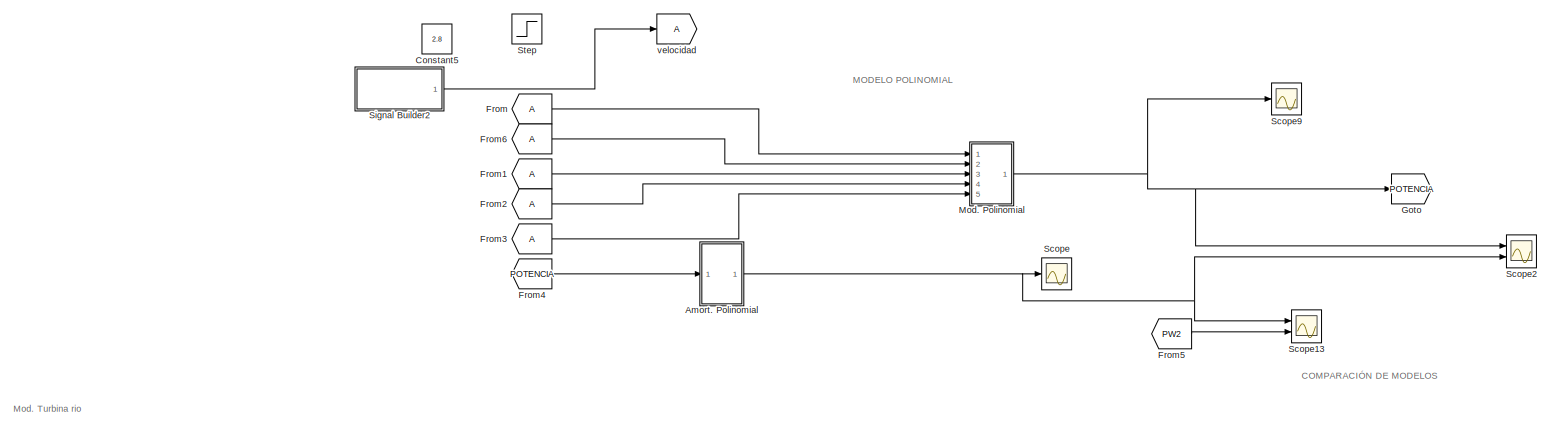
[diagram: root canvas - part 1/4, full width, top band]
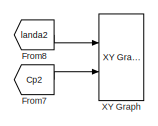
[diagram: root canvas - part 2/4, top right region]
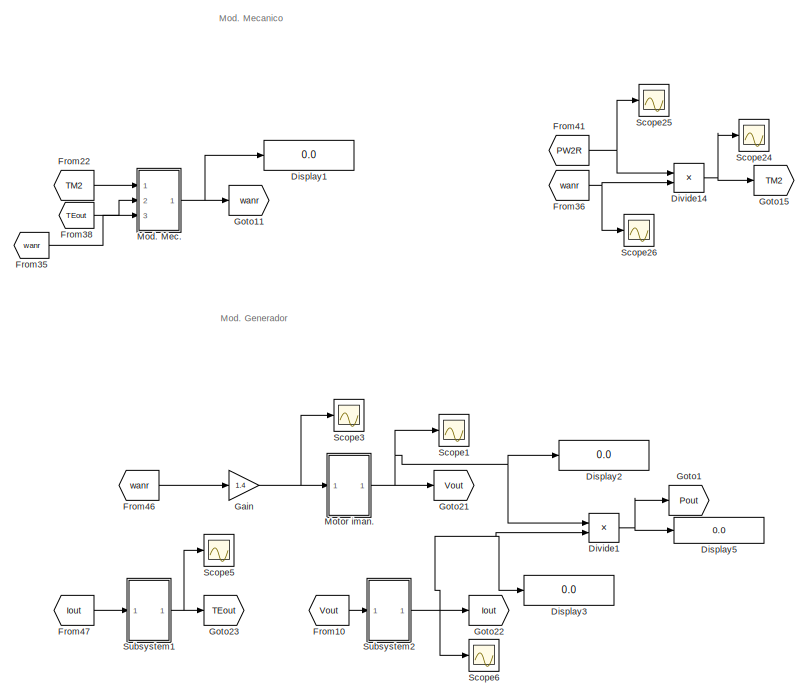
[diagram: root canvas - part 3/4, middle right region]
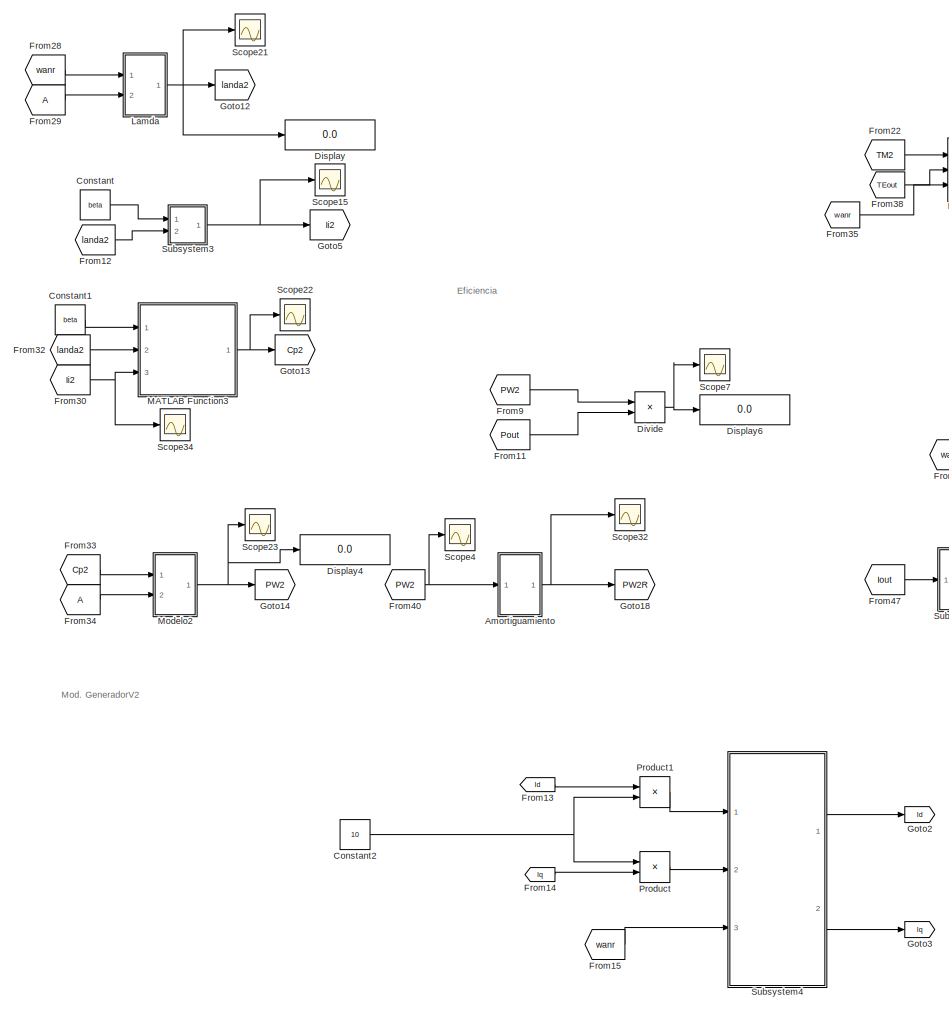
[diagram: root canvas - part 4/4, middle left region]
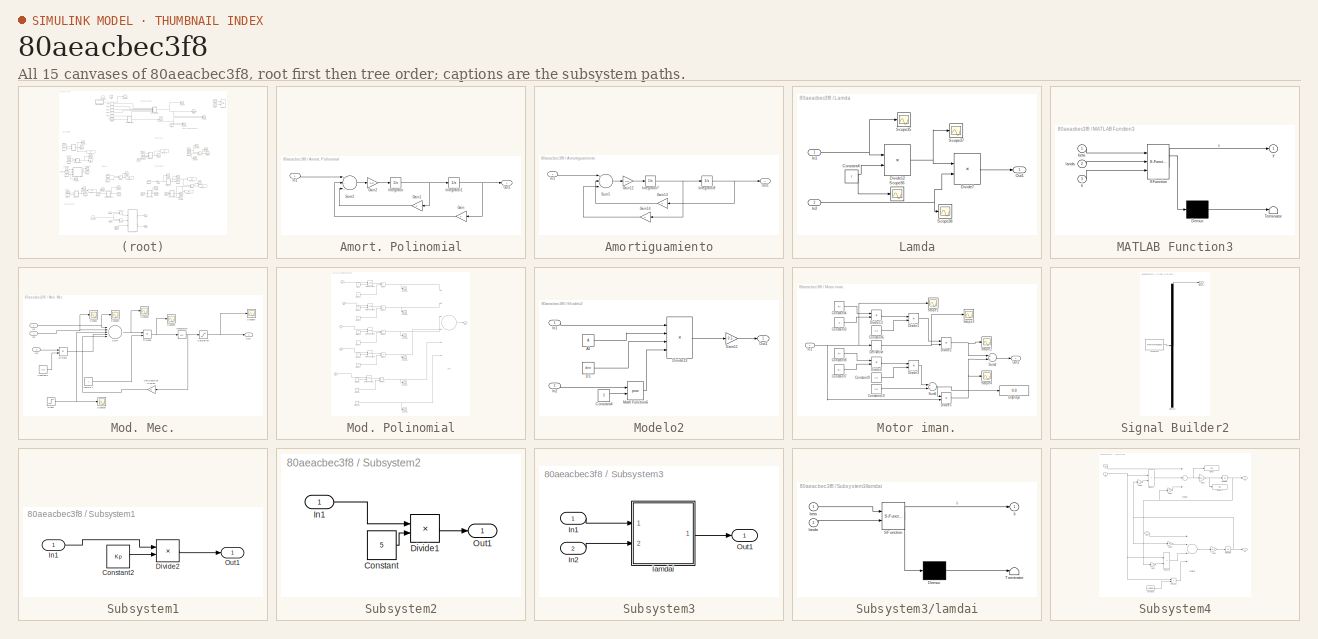
[diagram: thumbnail index - all 15 canvases of the model, root first then tree order]
MODEL slx_80aeacbec3f8
KIND model
CONFIG AbsTol = auto
CONFIG EnableMultiTasking = off
CONFIG FixedStep = 50e-3
CONFIG MaxStep = auto
CONFIG MinStep = auto
CONFIG RelTol = 1e-3
CONFIG SampleTimeConstraint = Unconstrained
CONFIG Solver = FixedStepAuto
CONFIG SolverName = FixedStepAuto
CONFIG StartTime = 0.0
CONFIG StopTime = 500
BLOCK [SubSystem] Amort. Polinomial
  Ports = [1, 1]
  RequestExecContextInheritance = off
  Variant = off
BLOCK [Gain] Amort. Polinomial/Gain
  Gain = k
  OutDataTypeStr = Inherit: Inherit via internal rule
  ParamDataTypeStr = Inherit: Inherit via internal rule
  SaturateOnIntegerOverflow = off
BLOCK [Gain] Amort. Polinomial/Gain1
  Gain = z
  OutDataTypeStr = Inherit: Inherit via internal rule
  ParamDataTypeStr = Inherit: Inherit via internal rule
  SaturateOnIntegerOverflow = off
BLOCK [Gain] Amort. Polinomial/Gain2
  Gain = 1/m
  OutDataTypeStr = Inherit: Inherit via internal rule
  ParamDataTypeStr = Inherit: Inherit via internal rule
  SaturateOnIntegerOverflow = off
BLOCK [Inport] Amort. Polinomial/In1
  IconDisplay = Port number
BLOCK [Integrator] Amort. Polinomial/Integrator
  Ports = [1, 1]
BLOCK [Integrator] Amort. Polinomial/Integrator1
  Ports = [1, 1]
BLOCK [Outport] Amort. Polinomial/Out1
  IconDisplay = Port number
BLOCK [Sum] Amort. Polinomial/Sum2
  InputSameDT = off
  Inputs = +--
  OutDataTypeStr = Inherit: Inherit via internal rule
  Ports = [3, 1]
  SaturateOnIntegerOverflow = off
BLOCK [SubSystem] Amortiguamiento
  Ports = [1, 1]
  RequestExecContextInheritance = off
  Variant = off
BLOCK [Gain] Amortiguamiento/Gain12
  Gain = 1/m
  OutDataTypeStr = Inherit: Inherit via internal rule
  ParamDataTypeStr = Inherit: Inherit via internal rule
  SaturateOnIntegerOverflow = off
BLOCK [Gain] Amortiguamiento/Gain13
  Gain = k
  OutDataTypeStr = Inherit: Inherit via internal rule
  ParamDataTypeStr = Inherit: Inherit via internal rule
  SaturateOnIntegerOverflow = off
BLOCK [Gain] Amortiguamiento/Gain14
  Gain = z
  OutDataTypeStr = Inherit: Inherit via internal rule
  ParamDataTypeStr = Inherit: Inherit via internal rule
  SaturateOnIntegerOverflow = off
BLOCK [Inport] Amortiguamiento/In1
  IconDisplay = Port number
BLOCK [Integrator] Amortiguamiento/Integrator7
  Ports = [1, 1]
BLOCK [Integrator] Amortiguamiento/Integrator8
  Ports = [1, 1]
BLOCK [Outport] Amortiguamiento/Out1
  IconDisplay = Port number
BLOCK [Sum] Amortiguamiento/Sum5
  InputSameDT = off
  Inputs = +--
  OutDataTypeStr = Inherit: Inherit via internal rule
  Ports = [3, 1]
  SaturateOnIntegerOverflow = off
BLOCK [Constant] Constant
  Value = beta
BLOCK [Constant] Constant1
  Value = beta
BLOCK [Constant] Constant2
  Value = 10
BLOCK [Constant] Constant5
  Value = 2.8
BLOCK [Display] Display
  Decimation = 1
  Ports = [1]
BLOCK [Display] Display1
  Decimation = 1
  Ports = [1]
BLOCK [Display] Display2
  Decimation = 1
  Ports = [1]
BLOCK [Display] Display3
  Decimation = 1
  Ports = [1]
BLOCK [Display] Display4
  Decimation = 1
  Ports = [1]
BLOCK [Display] Display5
  Decimation = 1
  Ports = [1]
BLOCK [Display] Display6
  Decimation = 1
  Ports = [1]
BLOCK [Product] Divide
  InputSameDT = off
  Inputs = /*
  OutDataTypeStr = Inherit: Inherit via internal rule
  Ports = [2, 1]
  RndMeth = Floor
  SaturateOnIntegerOverflow = off
BLOCK [Product] Divide1
  InputSameDT = off
  Inputs = **
  OutDataTypeStr = Inherit: Inherit via internal rule
  Ports = [2, 1]
  RndMeth = Floor
  SaturateOnIntegerOverflow = off
BLOCK [Product] Divide14
  InputSameDT = off
  Inputs = */
  OutDataTypeStr = Inherit: Inherit via internal rule
  Ports = [2, 1]
  RndMeth = Floor
  SaturateOnIntegerOverflow = off
BLOCK [From] From
BLOCK [From] From1
BLOCK [From] From10
  GotoTag = Vout
BLOCK [From] From11
  GotoTag = Pout
BLOCK [From] From12
  GotoTag = landa2
BLOCK [From] From13
  GotoTag = Id
  TagVisibility = global
BLOCK [From] From14
  GotoTag = Iq
  TagVisibility = global
BLOCK [From] From15
  GotoTag = wanr
BLOCK [From] From2
BLOCK [From] From22
  GotoTag = TM2
BLOCK [From] From28
  GotoTag = wanr
BLOCK [From] From29
BLOCK [From] From3
BLOCK [From] From30
  GotoTag = Ii2
BLOCK [From] From32
  GotoTag = landa2
BLOCK [From] From33
  GotoTag = Cp2
BLOCK [From] From34
BLOCK [From] From35
  GotoTag = wanr
BLOCK [From] From36
  GotoTag = wanr
BLOCK [From] From38
  GotoTag = TEout
BLOCK [From] From4
  GotoTag = POTENCIA
BLOCK [From] From40
  GotoTag = PW2
BLOCK [From] From41
  GotoTag = PW2R
BLOCK [From] From46
  GotoTag = wanr
BLOCK [From] From47
  GotoTag = Iout
BLOCK [From] From5
  GotoTag = PW2
BLOCK [From] From6
BLOCK [From] From7
  GotoTag = Cp2
BLOCK [From] From8
  GotoTag = landa2
BLOCK [From] From9
  GotoTag = PW2
BLOCK [Gain] Gain
  Gain = 1.4
  OutDataTypeStr = Inherit: Inherit via internal rule
  ParamDataTypeStr = Inherit: Inherit via internal rule
  SaturateOnIntegerOverflow = off
BLOCK [Goto] Goto
  GotoTag = POTENCIA
BLOCK [Goto] Goto1
  GotoTag = Pout
BLOCK [Goto] Goto11
  GotoTag = wanr
BLOCK [Goto] Goto12
  GotoTag = landa2
BLOCK [Goto] Goto13
  GotoTag = Cp2
BLOCK [Goto] Goto14
  GotoTag = PW2
BLOCK [Goto] Goto15
  GotoTag = TM2
BLOCK [Goto] Goto18
  GotoTag = PW2R
BLOCK [Goto] Goto2
  GotoTag = Id
  TagVisibility = global
BLOCK [Goto] Goto21
  GotoTag = Vout
BLOCK [Goto] Goto22
  GotoTag = Iout
BLOCK [Goto] Goto23
  GotoTag = TEout
BLOCK [Goto] Goto3
  GotoTag = Iq
  TagVisibility = global
BLOCK [Goto] Goto5
  GotoTag = Ii2
BLOCK [SubSystem] Lamda
  Ports = [2, 1]
  RequestExecContextInheritance = off
  Variant = off
BLOCK [Constant] Lamda/Constant4
  Value = r
BLOCK [Product] Lamda/Divide12
  InputSameDT = off
  Inputs = **
  OutDataTypeStr = Inherit: Inherit via internal rule
  Ports = [2, 1]
  RndMeth = Floor
  SaturateOnIntegerOverflow = off
BLOCK [Product] Lamda/Divide7
  InputSameDT = off
  Inputs = */
  OutDataTypeStr = Inherit: Inherit via internal rule
  Ports = [2, 1]
  RndMeth = Floor
  SaturateOnIntegerOverflow = off
BLOCK [Inport] Lamda/In1
  IconDisplay = Port number
BLOCK [Inport] Lamda/In2
  IconDisplay = Port number
  Port = 2
BLOCK [Outport] Lamda/Out1
  IconDisplay = Port number
BLOCK [Scope] Lamda/Scope35
  NumInputPorts = 1
  Ports = [1]
  ScopeSpecificationString = Simulink.scopes.TimeScopeBlockCfg('CurrentConfiguration', extmgr.ConfigurationSet(extmgr.Configuration('Core','General UI',true),extmgr.Configuration('Core','Source UI',true),extmgr.Configuration('Sources','WiredSimulink',true,'DataLoggingVariableName','ScopeData3'),extmgr.Configuration('Visuals','Time Domain',true,'SerializedDisplays',{struct('MinYLimReal','5.6875','MaxYLimReal','48.8125','YLabel...<+1643ch>
BLOCK [Scope] Lamda/Scope36
  NumInputPorts = 1
  Ports = [1]
  ScopeSpecificationString = Simulink.scopes.TimeScopeBlockCfg('CurrentConfiguration', extmgr.ConfigurationSet(extmgr.Configuration('Core','General UI',true),extmgr.Configuration('Core','Source UI',true),extmgr.Configuration('Sources','WiredSimulink',true,'DataLoggingVariableName','ScopeData4'),extmgr.Configuration('Visuals','Time Domain',true,'SerializedDisplays',{struct('MinYLimReal','0.4','MaxYLimReal','0.6','YLabelReal','...<+1363ch>
BLOCK [Scope] Lamda/Scope37
  NumInputPorts = 1
  Ports = [1]
  ScopeSpecificationString = Simulink.scopes.TimeScopeBlockCfg('CurrentConfiguration', extmgr.ConfigurationSet(extmgr.Configuration('Core','General UI',true),extmgr.Configuration('Core','Source UI',true),extmgr.Configuration('Sources','WiredSimulink',true,'DataLoggingVariableName','ScopeData5'),extmgr.Configuration('Visuals','Time Domain',true,'SerializedDisplays',{struct('MinYLimReal','2.60111','MaxYLimReal','26.59001','YLab...<+1394ch>
BLOCK [Scope] Lamda/Scope38
  NumInputPorts = 1
  Ports = [1]
  ScopeSpecificationString = Simulink.scopes.TimeScopeBlockCfg('CurrentConfiguration', extmgr.ConfigurationSet(extmgr.Configuration('Core','General UI',true),extmgr.Configuration('Core','Source UI',true),extmgr.Configuration('Sources','WiredSimulink',true,'DataLoggingVariableName','ScopeData6'),extmgr.Configuration('Visuals','Time Domain',true,'SerializedDisplays',{struct('MinYLimReal','1.9','MaxYLimReal','2.9','YLabelReal','...<+1328ch>
BLOCK [SubSystem] MATLAB Function3
  ErrorFcn = Stateflow.Translate.translate
  PermitHierarchicalResolution = ExplicitOnly
  Ports = [3, 1]
  RequestExecContextInheritance = off
  SFBlockType = MATLAB Function
  TreatAsAtomicUnit = on
  Variant = off
BLOCK [Demux] MATLAB Function3/ Demux 
  Outputs = 1
  Ports = [1, 1]
BLOCK [S-Function] MATLAB Function3/ SFunction 
  EnableBusSupport = on
  FunctionName = sf_sfun
  PortCounts = [3 2]
  Ports = [3, 2]
  SFcnIsStateOwnerBlock = off
  SFunctionDeploymentMode = off
  Tag = Stateflow S-Function MODELODETURBINADERIO2017aV2 2
BLOCK [Terminator] MATLAB Function3/ Terminator 
BLOCK [Inport] MATLAB Function3/Ii
  IconDisplay = Port number
  Port = 3
BLOCK [Inport] MATLAB Function3/beta
  IconDisplay = Port number
BLOCK [Inport] MATLAB Function3/landa
  IconDisplay = Port number
  Port = 2
BLOCK [Outport] MATLAB Function3/y
  IconDisplay = Port number
BLOCK [SubSystem] Mod. Mec.
  Ports = [3, 1]
  RequestExecContextInheritance = off
  Variant = off
BLOCK [Constant] Mod. Mec./Constant3
  Value = T_d
BLOCK [Product] Mod. Mec./Divide1
  InputSameDT = off
  Inputs = **
  OutDataTypeStr = Inherit: Inherit via internal rule
  Ports = [2, 1]
  RndMeth = Floor
  SaturateOnIntegerOverflow = off
BLOCK [Product] Mod. Mec./Divide9
  InputSameDT = off
  Inputs = */
  OutDataTypeStr = Inherit: Inherit via internal rule
  Ports = [2, 1]
  RndMeth = Floor
  SaturateOnIntegerOverflow = off
BLOCK [Inport] Mod. Mec./In1
  IconDisplay = Port number
BLOCK [Inport] Mod. Mec./In2
  IconDisplay = Port number
  Port = 2
BLOCK [Inport] Mod. Mec./In3
  IconDisplay = Port number
  Port = 3
BLOCK [Integrator] Mod. Mec./Integrator6
  InitialCondition = 10
  Ports = [1, 1]
BLOCK [Gain] Mod. Mec./Oeficiente de friccion
  Gain = B
  OutDataTypeStr = Inherit: Inherit via internal rule
  ParamDataTypeStr = Inherit: Inherit via internal rule
  SaturateOnIntegerOverflow = off
BLOCK [Outport] Mod. Mec./Out1
  IconDisplay = Port number
BLOCK [Saturate] Mod. Mec./Saturation
  InputPortMap = u0
  LowerLimit = 0
  Ports = [1, 1]
  UpperLimit = 44.5
BLOCK [Scope] Mod. Mec./Scope1
  NumInputPorts = 1
  Ports = [1]
  ScopeSpecificationString = Simulink.scopes.TimeScopeBlockCfg('CurrentConfiguration', extmgr.ConfigurationSet(extmgr.Configuration('Core','General UI',true),extmgr.Configuration('Core','Source UI',true),extmgr.Configuration('Sources','WiredSimulink',true,'DataLoggingVariableName','ScopeData3'),extmgr.Configuration('Visuals','Time Domain',true,'SerializedDisplays',{struct('MinYLimReal','0.88026','MaxYLimReal','9.22205','YLabe...<+1414ch>
BLOCK [Scope] Mod. Mec./Scope27
  NumInputPorts = 1
  Ports = [1]
  ScopeSpecificationString = Simulink.scopes.TimeScopeBlockCfg('CurrentConfiguration', extmgr.ConfigurationSet(extmgr.Configuration('Core','General UI',true),extmgr.Configuration('Core','Source UI',true),extmgr.Configuration('Sources','WiredSimulink',true,'DataLoggingVariableName','ScopeData11'),extmgr.Configuration('Visuals','Time Domain',true,'SerializedDisplays',{struct('MinYLimReal','2.3554','MaxYLimReal','78.80139','YLab...<+1439ch>
BLOCK [Scope] Mod. Mec./Scope28
  NumInputPorts = 1
  Ports = [1]
  ScopeSpecificationString = Simulink.scopes.TimeScopeBlockCfg('CurrentConfiguration', extmgr.ConfigurationSet(extmgr.Configuration('Core','General UI',true),extmgr.Configuration('Core','Source UI',true),extmgr.Configuration('Sources','WiredSimulink',true,'DataLoggingVariableName','ScopeData12'),extmgr.Configuration('Visuals','Time Domain',true,'SerializedDisplays',{struct('MinYLimReal','-8.50192','MaxYLimReal','96.70271','YL...<+1368ch>
BLOCK [Scope] Mod. Mec./Scope29
  NumInputPorts = 1
  Ports = [1]
  ScopeSpecificationString = Simulink.scopes.TimeScopeBlockCfg('CurrentConfiguration', extmgr.ConfigurationSet(extmgr.Configuration('Core','General UI',true),extmgr.Configuration('Core','Source UI',true),extmgr.Configuration('Sources','WiredSimulink',true,'DataLoggingVariableName','ScopeData13'),extmgr.Configuration('Visuals','Time Domain',true,'SerializedDisplays',{struct('MinYLimReal','-11.96821','MaxYLimReal','107.7139','Y...<+1423ch>
BLOCK [Scope] Mod. Mec./Scope30
  NumInputPorts = 1
  Ports = [1]
  ScopeSpecificationString = Simulink.scopes.TimeScopeBlockCfg('CurrentConfiguration', extmgr.ConfigurationSet(extmgr.Configuration('Core','General UI',true),extmgr.Configuration('Core','Source UI',true),extmgr.Configuration('Sources','WiredSimulink',true,'DataLoggingVariableName','ScopeData14'),extmgr.Configuration('Visuals','Time Domain',true,'SerializedDisplays',{struct('MinYLimReal','-0.08502','MaxYLimReal','0.96703','YLa...<+1367ch>
BLOCK [Scope] Mod. Mec./Scope39
  NumInputPorts = 1
  Ports = [1]
  ScopeSpecificationString = Simulink.scopes.TimeScopeBlockCfg('CurrentConfiguration', extmgr.ConfigurationSet(extmgr.Configuration('Core','General UI',true),extmgr.Configuration('Core','Source UI',true),extmgr.Configuration('Sources','WiredSimulink',true,'DataLoggingVariableName','ScopeData7'),extmgr.Configuration('Visuals','Time Domain',true,'SerializedDisplays',{struct('MinYLimReal','-0.625','MaxYLimReal','5.625','YLabelRe...<+1406ch>
BLOCK [Step] Mod. Mec./Step1
  After = 0
  Before = 5
  SampleTime = 0
  Time = 3
BLOCK [Sum] Mod. Mec./Sum4
  InputSameDT = off
  Inputs = |+-+--
  OutDataTypeStr = Inherit: Inherit via internal rule
  Ports = [5, 1]
  SaturateOnIntegerOverflow = off
BLOCK [Constant] Mod. Mec./inercia J
  Value = J
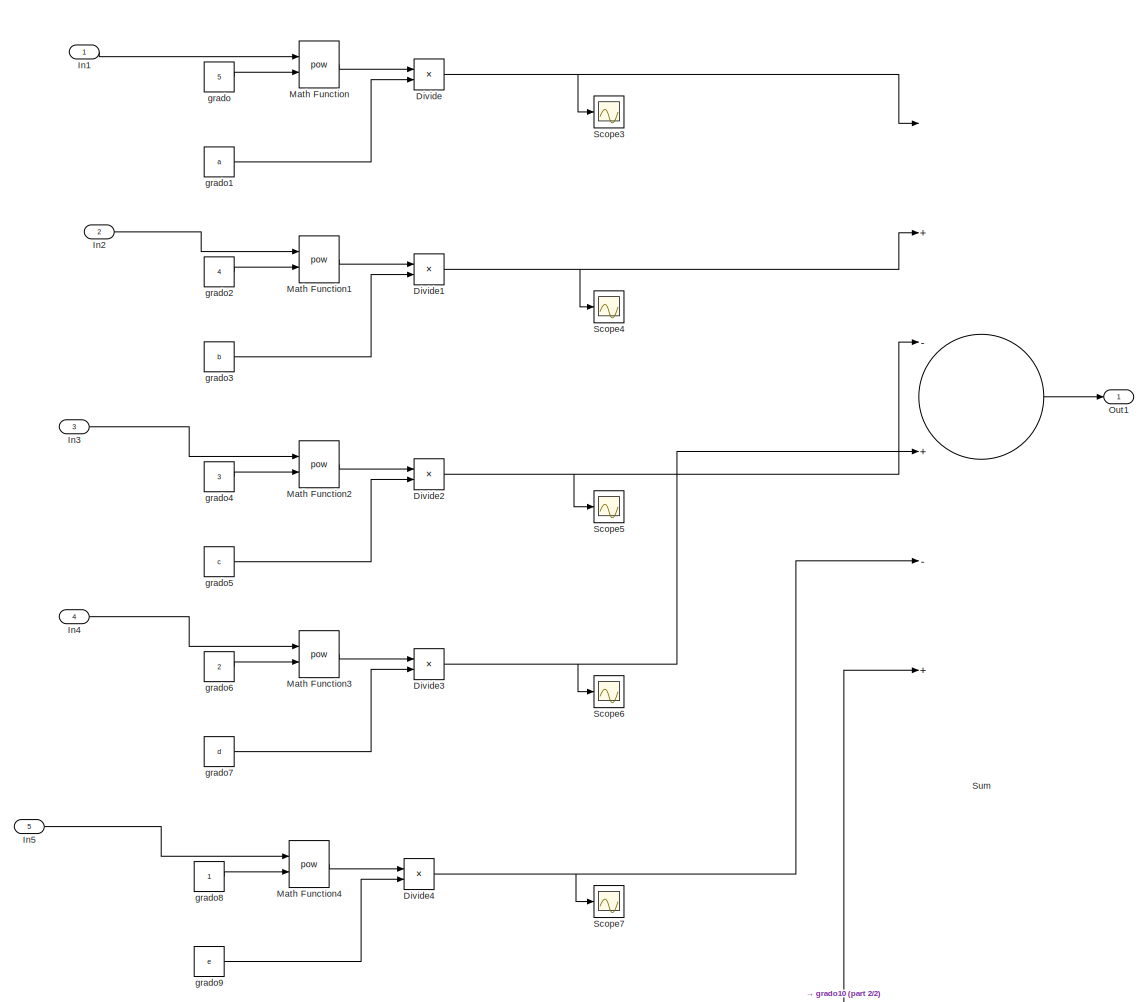
[diagram: Mod. Polinomial - part 1/2, most of the canvas]
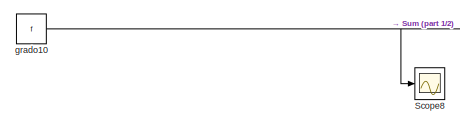
[diagram: Mod. Polinomial - part 2/2, bottom center region]
BLOCK [SubSystem] Mod. Polinomial
  Ports = [5, 1]
  RequestExecContextInheritance = off
  Variant = off
BLOCK [Product] Mod. Polinomial/Divide
  InputSameDT = off
  Inputs = **
  OutDataTypeStr = Inherit: Inherit via internal rule
  Ports = [2, 1]
  RndMeth = Floor
  SaturateOnIntegerOverflow = off
BLOCK [Product] Mod. Polinomial/Divide1
  InputSameDT = off
  Inputs = **
  OutDataTypeStr = Inherit: Inherit via internal rule
  Ports = [2, 1]
  RndMeth = Floor
  SaturateOnIntegerOverflow = off
BLOCK [Product] Mod. Polinomial/Divide2
  InputSameDT = off
  Inputs = **
  OutDataTypeStr = Inherit: Inherit via internal rule
  Ports = [2, 1]
  RndMeth = Floor
  SaturateOnIntegerOverflow = off
BLOCK [Product] Mod. Polinomial/Divide3
  InputSameDT = off
  Inputs = **
  OutDataTypeStr = Inherit: Inherit via internal rule
  Ports = [2, 1]
  RndMeth = Floor
  SaturateOnIntegerOverflow = off
BLOCK [Product] Mod. Polinomial/Divide4
  InputSameDT = off
  Inputs = **
  OutDataTypeStr = Inherit: Inherit via internal rule
  Ports = [2, 1]
  RndMeth = Floor
  SaturateOnIntegerOverflow = off
BLOCK [Inport] Mod. Polinomial/In1
  IconDisplay = Port number
BLOCK [Inport] Mod. Polinomial/In2
  IconDisplay = Port number
  Port = 2
BLOCK [Inport] Mod. Polinomial/In3
  IconDisplay = Port number
  Port = 3
BLOCK [Inport] Mod. Polinomial/In4
  IconDisplay = Port number
  Port = 4
BLOCK [Inport] Mod. Polinomial/In5
  IconDisplay = Port number
  Port = 5
BLOCK [Math] Mod. Polinomial/Math Function
  Operator = pow
  Ports = [2, 1]
BLOCK [Math] Mod. Polinomial/Math Function1
  Operator = pow
  Ports = [2, 1]
BLOCK [Math] Mod. Polinomial/Math Function2
  Operator = pow
  Ports = [2, 1]
BLOCK [Math] Mod. Polinomial/Math Function3
  Operator = pow
  Ports = [2, 1]
BLOCK [Math] Mod. Polinomial/Math Function4
  Operator = pow
  Ports = [2, 1]
BLOCK [Outport] Mod. Polinomial/Out1
  IconDisplay = Port number
BLOCK [Scope] Mod. Polinomial/Scope3
  NumInputPorts = 1
  Ports = [1]
  ScopeSpecificationString = Simulink.scopes.TimeScopeBlockCfg('CurrentConfiguration', extmgr.ConfigurationSet(extmgr.Configuration('Core','General UI',true),extmgr.Configuration('Core','Source UI',true),extmgr.Configuration('Sources','WiredSimulink',true,'DataLoggingVariableName','ScopeData3'),extmgr.Configuration('Visuals','Time Domain',true,'SerializedDisplays',{struct('MinYLimReal','72669.32937','MaxYLimReal','117958.4575...<+1399ch>
BLOCK [Scope] Mod. Polinomial/Scope4
  NumInputPorts = 1
  Ports = [1]
  ScopeSpecificationString = Simulink.scopes.TimeScopeBlockCfg('CurrentConfiguration', extmgr.ConfigurationSet(extmgr.Configuration('Core','General UI',true),extmgr.Configuration('Core','Source UI',true),extmgr.Configuration('Sources','WiredSimulink',true,'DataLoggingVariableName','ScopeData4'),extmgr.Configuration('Visuals','Time Domain',true,'SerializedDisplays',{struct('MinYLimReal','257404.52115','MaxYLimReal','378867.122...<+1404ch>
BLOCK [Scope] Mod. Polinomial/Scope5
  NumInputPorts = 1
  Ports = [1]
  ScopeSpecificationString = Simulink.scopes.TimeScopeBlockCfg('CurrentConfiguration', extmgr.ConfigurationSet(extmgr.Configuration('Core','General UI',true),extmgr.Configuration('Core','Source UI',true),extmgr.Configuration('Sources','WiredSimulink',true,'DataLoggingVariableName','ScopeData5'),extmgr.Configuration('Visuals','Time Domain',true,'SerializedDisplays',{struct('MinYLimReal','359711.7435','MaxYLimReal','480406.8085...<+1396ch>
BLOCK [Scope] Mod. Polinomial/Scope6
  NumInputPorts = 1
  Ports = [1]
  ScopeSpecificationString = Simulink.scopes.TimeScopeBlockCfg('CurrentConfiguration', extmgr.ConfigurationSet(extmgr.Configuration('Core','General UI',true),extmgr.Configuration('Core','Source UI',true),extmgr.Configuration('Sources','WiredSimulink',true,'DataLoggingVariableName','ScopeData6'),extmgr.Configuration('Visuals','Time Domain',true,'SerializedDisplays',{struct('MinYLimReal','240320.16','MaxYLimReal','291368.56','Y...<+1380ch>
BLOCK [Scope] Mod. Polinomial/Scope7
  NumInputPorts = 1
  Ports = [1]
  ScopeSpecificationString = Simulink.scopes.TimeScopeBlockCfg('CurrentConfiguration', extmgr.ConfigurationSet(extmgr.Configuration('Core','General UI',true),extmgr.Configuration('Core','Source UI',true),extmgr.Configuration('Sources','WiredSimulink',true,'DataLoggingVariableName','ScopeData7'),extmgr.Configuration('Visuals','Time Domain',true,'SerializedDisplays',{struct('MinYLimReal','78860.925','MaxYLimReal','86826.675','Y...<+1380ch>
BLOCK [Scope] Mod. Polinomial/Scope8
  NumInputPorts = 1
  Ports = [1]
  ScopeSpecificationString = Simulink.scopes.TimeScopeBlockCfg('CurrentConfiguration', extmgr.ConfigurationSet(extmgr.Configuration('Core','General UI',true),extmgr.Configuration('Core','Source UI',true),extmgr.Configuration('Sources','WiredSimulink',true,'DataLoggingVariableName','ScopeData8'),extmgr.Configuration('Visuals','Time Domain',true),extmgr.Configuration('Tools','Plot Navigation',true),extmgr.Configuration('Tools',...<+40ch>
BLOCK [Sum] Mod. Polinomial/Sum
  InputSameDT = off
  Inputs = |+-+-+-
  OutDataTypeStr = Inherit: Inherit via internal rule
  Ports = [6, 1]
  SaturateOnIntegerOverflow = off
BLOCK [Constant] Mod. Polinomial/grado
  Value = 5
BLOCK [Constant] Mod. Polinomial/grado1
  Value = a
BLOCK [Constant] Mod. Polinomial/grado10
  Value = f
BLOCK [Constant] Mod. Polinomial/grado2
  Value = 4
BLOCK [Constant] Mod. Polinomial/grado3
  Value = b
BLOCK [Constant] Mod. Polinomial/grado4
  Value = 3
BLOCK [Constant] Mod. Polinomial/grado5
  Value = c
BLOCK [Constant] Mod. Polinomial/grado6
  Value = 2
BLOCK [Constant] Mod. Polinomial/grado7
  Value = d
BLOCK [Constant] Mod. Polinomial/grado8
BLOCK [Constant] Mod. Polinomial/grado9
  Value = e
BLOCK [SubSystem] Modelo2
  Ports = [2, 1]
  RequestExecContextInheritance = off
  Variant = off
BLOCK [Constant] Modelo2/A1
  Value = A
BLOCK [Constant] Modelo2/Constant4
  Value = 3
BLOCK [Constant] Modelo2/D1
  Value = den
BLOCK [Product] Modelo2/Divide13
  InputSameDT = off
  Inputs = ****
  OutDataTypeStr = Inherit: Inherit via internal rule
  Ports = [4, 1]
BLOCK [Gain] Modelo2/Gain11
  Gain = 0.5
  OutDataTypeStr = Inherit: Inherit via internal rule
  ParamDataTypeStr = Inherit: Inherit via internal rule
  SaturateOnIntegerOverflow = off
BLOCK [Inport] Modelo2/In1
  IconDisplay = Port number
BLOCK [Inport] Modelo2/In2
  IconDisplay = Port number
  Port = 2
BLOCK [Math] Modelo2/Math Function6
  Operator = pow
  Ports = [2, 1]
BLOCK [Outport] Modelo2/Out1
  IconDisplay = Port number
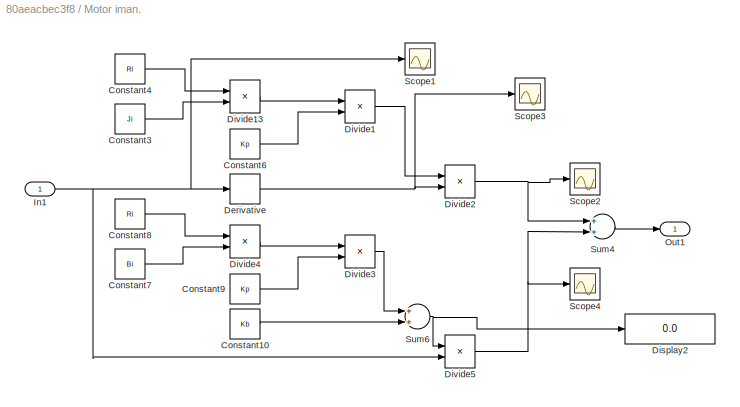
BLOCK [SubSystem] Motor iman.
  Ports = [1, 1]
  RequestExecContextInheritance = off
  Variant = off
BLOCK [Constant] Motor iman./Constant10
  Value = Kb
BLOCK [Constant] Motor iman./Constant3
  Value = Ji
BLOCK [Constant] Motor iman./Constant4
  Value = Ri
BLOCK [Constant] Motor iman./Constant6
  Value = Kp
BLOCK [Constant] Motor iman./Constant7
  Value = Bi
BLOCK [Constant] Motor iman./Constant8
  Value = Ri
BLOCK [Constant] Motor iman./Constant9
  Value = Kp
BLOCK [Derivative] Motor iman./Derivative
BLOCK [Display] Motor iman./Display2
  Decimation = 1
  Ports = [1]
BLOCK [Product] Motor iman./Divide1
  InputSameDT = off
  Inputs = */
  OutDataTypeStr = Inherit: Inherit via internal rule
  Ports = [2, 1]
BLOCK [Product] Motor iman./Divide13
  InputSameDT = off
  Inputs = **
  OutDataTypeStr = Inherit: Inherit via internal rule
  Ports = [2, 1]
BLOCK [Product] Motor iman./Divide2
  InputSameDT = off
  Inputs = **
  OutDataTypeStr = Inherit: Inherit via internal rule
  Ports = [2, 1]
BLOCK [Product] Motor iman./Divide3
  InputSameDT = off
  Inputs = */
  OutDataTypeStr = Inherit: Inherit via internal rule
  Ports = [2, 1]
BLOCK [Product] Motor iman./Divide4
  InputSameDT = off
  Inputs = **
  OutDataTypeStr = Inherit: Inherit via internal rule
  Ports = [2, 1]
BLOCK [Product] Motor iman./Divide5
  InputSameDT = off
  Inputs = **
  OutDataTypeStr = Inherit: Inherit via internal rule
  Ports = [2, 1]
BLOCK [Inport] Motor iman./In1
  IconDisplay = Port number
BLOCK [Outport] Motor iman./Out1
  IconDisplay = Port number
BLOCK [Scope] Motor iman./Scope1
  NumInputPorts = 1
  Ports = [1]
  ScopeSpecificationString = Simulink.scopes.TimeScopeBlockCfg('CurrentConfiguration', extmgr.ConfigurationSet(extmgr.Configuration('Core','General UI',true),extmgr.Configuration('Core','Source UI',true),extmgr.Configuration('Sources','WiredSimulink',true,'DataLoggingVariableName','ScopeData5'),extmgr.Configuration('Visuals','Time Domain',true,'SerializedDisplays',{struct('MinYLimReal','5.20222','MaxYLimReal','53.18001','YLab...<+1364ch>
BLOCK [Scope] Motor iman./Scope2
  NumInputPorts = 1
  Ports = [1]
  ScopeSpecificationString = Simulink.scopes.TimeScopeBlockCfg('CurrentConfiguration', extmgr.ConfigurationSet(extmgr.Configuration('Core','General UI',true),extmgr.Configuration('Core','Source UI',true),extmgr.Configuration('Sources','WiredSimulink',true,'DataLoggingVariableName','ScopeData1'),extmgr.Configuration('Visuals','Time Domain',true,'SerializedDisplays',{struct('MinYLimReal','-0.16652','MaxYLimReal','1.49866','YLab...<+1366ch>
BLOCK [Scope] Motor iman./Scope3
  NumInputPorts = 1
  Ports = [1]
  ScopeSpecificationString = Simulink.scopes.TimeScopeBlockCfg('CurrentConfiguration', extmgr.ConfigurationSet(extmgr.Configuration('Core','General UI',true),extmgr.Configuration('Core','Source UI',true),extmgr.Configuration('Sources','WiredSimulink',true,'DataLoggingVariableName','ScopeData4'),extmgr.Configuration('Visuals','Time Domain',true,'SerializedDisplays',{struct('MinYLimReal','-0.11101','MaxYLimReal','0.99911','YLab...<+1369ch>
BLOCK [Scope] Motor iman./Scope4
  NumInputPorts = 1
  Ports = [1]
  ScopeSpecificationString = Simulink.scopes.TimeScopeBlockCfg('CurrentConfiguration', extmgr.ConfigurationSet(extmgr.Configuration('Core','General UI',true),extmgr.Configuration('Core','Source UI',true),extmgr.Configuration('Sources','WiredSimulink',true,'DataLoggingVariableName','ScopeData2'),extmgr.Configuration('Visuals','Time Domain',true,'SerializedDisplays',{struct('MinYLimReal','11.14862','MaxYLimReal','113.96743','YL...<+1376ch>
BLOCK [Sum] Motor iman./Sum4
  InputSameDT = off
  OutDataTypeStr = Inherit: Inherit via internal rule
  Ports = [2, 1]
  SaturateOnIntegerOverflow = off
BLOCK [Sum] Motor iman./Sum6
  InputSameDT = off
  OutDataTypeStr = Inherit: Inherit via internal rule
  Ports = [2, 1]
  SaturateOnIntegerOverflow = off
BLOCK [Product] Product
  InputSameDT = off
  OutDataTypeStr = Inherit: Inherit via internal rule
  Ports = [2, 1]
  RndMeth = Floor
  SaturateOnIntegerOverflow = off
BLOCK [Product] Product1
  InputSameDT = off
  OutDataTypeStr = Inherit: Inherit via internal rule
  Ports = [2, 1]
  RndMeth = Floor
  SaturateOnIntegerOverflow = off
BLOCK [Scope] Scope
  NumInputPorts = 1
  Ports = [1]
  ScopeSpecificationString = Simulink.scopes.TimeScopeBlockCfg('CurrentConfiguration', extmgr.ConfigurationSet(extmgr.Configuration('Core','General UI',true),extmgr.Configuration('Core','Source UI',true),extmgr.Configuration('Sources','WiredSimulink',true),extmgr.Configuration('Visuals','Time Domain',true,'SerializedDisplays',{struct('MinYLimReal','-856.7741','MaxYLimReal','7710.96689','YLabelReal','','MinYLimMag',' 0.00000',...<+1445ch>
BLOCK [Scope] Scope1
  NumInputPorts = 1
  Ports = [1]
  ScopeSpecificationString = Simulink.scopes.TimeScopeBlockCfg('CurrentConfiguration', extmgr.ConfigurationSet(extmgr.Configuration('Core','General UI',true),extmgr.Configuration('Core','Source UI',true),extmgr.Configuration('Sources','WiredSimulink',true,'DataLoggingVariableName','ScopeData1'),extmgr.Configuration('Visuals','Time Domain',true,'SerializedDisplays',{struct('MinYLimReal','11.00326','MaxYLimReal','115.27563','YL...<+1380ch>
BLOCK [Scope] Scope13
  NumInputPorts = 2
  Ports = [2]
  ScopeSpecificationString = Simulink.scopes.TimeScopeBlockCfg('CurrentConfiguration', extmgr.ConfigurationSet(extmgr.Configuration('Core','General UI',true),extmgr.Configuration('Core','Source UI',true),extmgr.Configuration('Sources','WiredSimulink',true,'DataLoggingVariableName','ScopeData13'),extmgr.Configuration('Visuals','Time Domain',true,'SerializedDisplays',{struct('MinYLimReal','-77930.67351','MaxYLimReal','16383.452...<+1484ch>
BLOCK [Scope] Scope15
  NumInputPorts = 1
  Ports = [1]
  ScopeSpecificationString = Simulink.scopes.TimeScopeBlockCfg('CurrentConfiguration', extmgr.ConfigurationSet(extmgr.Configuration('Core','General UI',true),extmgr.Configuration('Core','Source UI',true),extmgr.Configuration('Sources','WiredSimulink',true,'DataLoggingVariableName','ScopeData2'),extmgr.Configuration('Visuals','Time Domain',true,'SerializedDisplays',{struct('MinYLimReal','0.59477','MaxYLimReal','13.69466','YLab...<+1371ch>
BLOCK [Scope] Scope2
  NumInputPorts = 2
  Ports = [2]
  ScopeSpecificationString = Simulink.scopes.TimeScopeBlockCfg('CurrentConfiguration', extmgr.ConfigurationSet(extmgr.Configuration('Core','General UI',true),extmgr.Configuration('Core','Source UI',true),extmgr.Configuration('Sources','WiredSimulink',true,'DataLoggingVariableName','ScopeData2'),extmgr.Configuration('Visuals','Time Domain',true,'SerializedDisplays',{struct('MinYLimReal','-731.40141','MaxYLimReal','6582.61273',...<+1394ch>
BLOCK [Scope] Scope21
  NumInputPorts = 1
  Ports = [1]
  ScopeSpecificationString = Simulink.scopes.TimeScopeBlockCfg('CurrentConfiguration', extmgr.ConfigurationSet(extmgr.Configuration('Core','General UI',true),extmgr.Configuration('Core','Source UI',true),extmgr.Configuration('Sources','WiredSimulink',true,'DataLoggingVariableName','ScopeData5'),extmgr.Configuration('Visuals','Time Domain',true,'SerializedDisplays',{struct('MinYLimReal','1.05786','MaxYLimReal','8.71182','YLabe...<+1362ch>
BLOCK [Scope] Scope22
  NumInputPorts = 1
  Ports = [1]
  ScopeSpecificationString = Simulink.scopes.TimeScopeBlockCfg('CurrentConfiguration', extmgr.ConfigurationSet(extmgr.Configuration('Core','General UI',true),extmgr.Configuration('Core','Source UI',true),extmgr.Configuration('Sources','WiredSimulink',true,'DataLoggingVariableName','ScopeData6'),extmgr.Configuration('Visuals','Time Domain',true,'SerializedDisplays',{struct('MinYLimReal','-0.04533','MaxYLimReal','0.53777','YLab...<+1404ch>
BLOCK [Scope] Scope23
  NumInputPorts = 1
  Ports = [1]
  ScopeSpecificationString = Simulink.scopes.TimeScopeBlockCfg('CurrentConfiguration', extmgr.ConfigurationSet(extmgr.Configuration('Core','General UI',true),extmgr.Configuration('Core','Source UI',true),extmgr.Configuration('Sources','WiredSimulink',true,'DataLoggingVariableName','ScopeData7'),extmgr.Configuration('Visuals','Time Domain',true,'SerializedDisplays',{struct('MinYLimReal','-394.91118','MaxYLimReal','4641.60896',...<+1384ch>
BLOCK [Scope] Scope24
  NumInputPorts = 1
  Ports = [1]
  ScopeSpecificationString = Simulink.scopes.TimeScopeBlockCfg('CurrentConfiguration', extmgr.ConfigurationSet(extmgr.Configuration('Core','General UI',true),extmgr.Configuration('Core','Source UI',true),extmgr.Configuration('Sources','WiredSimulink',true,'DataLoggingVariableName','ScopeData8'),extmgr.Configuration('Visuals','Time Domain',true,'SerializedDisplays',{struct('MinYLimReal','-11.96821','MaxYLimReal','107.7139','YL...<+1697ch>
BLOCK [Scope] Scope25
  NumInputPorts = 1
  Ports = [1]
  ScopeSpecificationString = Simulink.scopes.TimeScopeBlockCfg('CurrentConfiguration', extmgr.ConfigurationSet(extmgr.Configuration('Core','General UI',true),extmgr.Configuration('Core','Source UI',true),extmgr.Configuration('Sources','WiredSimulink',true,'DataLoggingVariableName','ScopeData9'),extmgr.Configuration('Visuals','Time Domain',true,'SerializedDisplays',{struct('MinYLimReal','-573.14253','MaxYLimReal','5158.2828','...<+1388ch>
BLOCK [Scope] Scope26
  NumInputPorts = 1
  Ports = [1]
  ScopeSpecificationString = Simulink.scopes.TimeScopeBlockCfg('CurrentConfiguration', extmgr.ConfigurationSet(extmgr.Configuration('Core','General UI',true),extmgr.Configuration('Core','Source UI',true),extmgr.Configuration('Sources','WiredSimulink',true,'DataLoggingVariableName','ScopeData10'),extmgr.Configuration('Visuals','Time Domain',true,'SerializedDisplays',{struct('MinYLimReal','5.48072','MaxYLimReal','50.67354','YLa...<+1371ch>
BLOCK [Scope] Scope3
  NumInputPorts = 1
  Ports = [1]
  ScopeSpecificationString = Simulink.scopes.TimeScopeBlockCfg('CurrentConfiguration', extmgr.ConfigurationSet(extmgr.Configuration('Core','General UI',true),extmgr.Configuration('Core','Source UI',true),extmgr.Configuration('Sources','WiredSimulink',true,'DataLoggingVariableName','ScopeData2'),extmgr.Configuration('Visuals','Time Domain',true,'SerializedDisplays',{struct('MinYLimReal','5.20222','MaxYLimReal','53.18001','YLab...<+1370ch>
BLOCK [Scope] Scope32
  NumInputPorts = 1
  Ports = [1]
  ScopeSpecificationString = Simulink.scopes.TimeScopeBlockCfg('CurrentConfiguration', extmgr.ConfigurationSet(extmgr.Configuration('Core','General UI',true),extmgr.Configuration('Core','Source UI',true),extmgr.Configuration('Sources','WiredSimulink',true,'DataLoggingVariableName','ScopeData16'),extmgr.Configuration('Visuals','Time Domain',true,'SerializedDisplays',{struct('MinYLimReal','-521.27802','MaxYLimReal','4691.50215'...<+1422ch>
BLOCK [Scope] Scope34
  NumInputPorts = 1
  Ports = [1]
  ScopeSpecificationString = Simulink.scopes.TimeScopeBlockCfg('CurrentConfiguration', extmgr.ConfigurationSet(extmgr.Configuration('Core','General UI',true),extmgr.Configuration('Core','Source UI',true),extmgr.Configuration('Sources','WiredSimulink',true,'DataLoggingVariableName','ScopeData2'),extmgr.Configuration('Visuals','Time Domain',true,'SerializedDisplays',{struct('MinYLimReal','-1.41755','MaxYLimReal','13.56022','YLa...<+1367ch>
BLOCK [Scope] Scope4
  NumInputPorts = 1
  Ports = [1]
  ScopeSpecificationString = Simulink.scopes.TimeScopeBlockCfg('CurrentConfiguration', extmgr.ConfigurationSet(extmgr.Configuration('Core','General UI',true),extmgr.Configuration('Core','Source UI',true),extmgr.Configuration('Sources','WiredSimulink',true,'DataLoggingVariableName','ScopeData3'),extmgr.Configuration('Visuals','Time Domain',true,'SerializedDisplays',{struct('MinYLimReal','-394.91118','MaxYLimReal','4641.60896',...<+1413ch>
BLOCK [Scope] Scope5
  NumInputPorts = 1
  Ports = [1]
  ScopeSpecificationString = Simulink.scopes.TimeScopeBlockCfg('CurrentConfiguration', extmgr.ConfigurationSet(extmgr.Configuration('Core','General UI',true),extmgr.Configuration('Core','Source UI',true),extmgr.Configuration('Sources','WiredSimulink',true,'DataLoggingVariableName','ScopeData1'),extmgr.Configuration('Visuals','Time Domain',true,'SerializedDisplays',{struct('MinYLimReal','0.88026','MaxYLimReal','9.22205','YLabe...<+1392ch>
BLOCK [Scope] Scope6
  NumInputPorts = 1
  Ports = [1]
  ScopeSpecificationString = Simulink.scopes.TimeScopeBlockCfg('CurrentConfiguration', extmgr.ConfigurationSet(extmgr.Configuration('Core','General UI',true),extmgr.Configuration('Core','Source UI',true),extmgr.Configuration('Sources','WiredSimulink',true,'DataLoggingVariableName','ScopeData2'),extmgr.Configuration('Visuals','Time Domain',true,'SerializedDisplays',{struct('MinYLimReal','0.39146','MaxYLimReal','17.90732','YLab...<+1368ch>
BLOCK [Scope] Scope7
  NumInputPorts = 1
  Ports = [1]
  ScopeSpecificationString = Simulink.scopes.TimeScopeBlockCfg('CurrentConfiguration', extmgr.ConfigurationSet(extmgr.Configuration('Core','General UI',true),extmgr.Configuration('Core','Source UI',true),extmgr.Configuration('Sources','WiredSimulink',true,'DataLoggingVariableName','ScopeData1'),extmgr.Configuration('Visuals','Time Domain',true,'SerializedDisplays',{struct('MinYLimReal','0.43797','MaxYLimReal','2.40286','YLabe...<+1363ch>
BLOCK [Scope] Scope9
  NumInputPorts = 1
  Ports = [1]
  ScopeSpecificationString = Simulink.scopes.TimeScopeBlockCfg('CurrentConfiguration', extmgr.ConfigurationSet(extmgr.Configuration('Core','General UI',true),extmgr.Configuration('Core','Source UI',true),extmgr.Configuration('Sources','WiredSimulink',true,'DataLoggingVariableName','ScopeData9'),extmgr.Configuration('Visuals','Time Domain',true,'SerializedDisplays',{struct('MinYLimReal','4538.47528','MaxYLimReal','6538.47528',...<+1396ch>
BLOCK [SubSystem] Signal Builder2
  ClipboardFcn = sigbuilder_block('clipboard');
  CloseFcn = sigbuilder_block('close');
  ContinueFcn = sigbuilder_block('continue');
  CopyFcn = sigbuilder_block('copy');
  DeleteFcn = sigbuilder_block('delete');
  LoadFcn = sigbuilder_block('load');
  MaskHideContents = on
  ModelCloseFcn = sigbuilder_block('modelClose');
  NameChangeFcn = sigbuilder_block('namechange');
  OpenFcn = sigbuilder_block('open',[197.25 66 550.5 359.25 ]);
  PauseFcn = sigbuilder_block('pause');
  Ports = [0, 1]
  PreSaveFcn = sigbuilder_block('preSave');
  RequestExecContextInheritance = off
  StartFcn = sigbuilder_block('start');
  StopFcn = sigbuilder_block('stop');
  Tag = STV Subsys
  Variant = off
BLOCK [Demux] Signal Builder2/Demux
  Outputs = 1
  Ports = [1, 1]
  Tag = STV Demux
BLOCK [FromWorkspace] Signal Builder2/FromWs
  SampleTime = 0
  Tag = STV FromWs
  VariableName = tuvar
  ZeroCross = on
BLOCK [Outport] Signal Builder2/Signal 2
  IconDisplay = Port number
  Tag = STV Outport
BLOCK [Step] Step
  After = 2.888
  Before = 2.5
  SampleTime = 0
  Time = 10
BLOCK [SubSystem] Subsystem1
  Ports = [1, 1]
  RequestExecContextInheritance = off
  Variant = off
BLOCK [Constant] Subsystem1/Constant2
  Value = Kp
BLOCK [Product] Subsystem1/Divide2
  InputSameDT = off
  Inputs = **
  OutDataTypeStr = Inherit: Inherit via internal rule
  Ports = [2, 1]
  RndMeth = Floor
  SaturateOnIntegerOverflow = off
BLOCK [Inport] Subsystem1/In1
  IconDisplay = Port number
BLOCK [Outport] Subsystem1/Out1
  IconDisplay = Port number
BLOCK [SubSystem] Subsystem2
  Ports = [1, 1]
  RequestExecContextInheritance = off
  Variant = off
BLOCK [Constant] Subsystem2/Constant
  Value = 5
BLOCK [Product] Subsystem2/Divide1
  InputSameDT = off
  Inputs = */
  OutDataTypeStr = Inherit: Inherit via internal rule
  Ports = [2, 1]
  RndMeth = Floor
  SaturateOnIntegerOverflow = off
BLOCK [Inport] Subsystem2/In1
  IconDisplay = Port number
BLOCK [Outport] Subsystem2/Out1
  IconDisplay = Port number
BLOCK [SubSystem] Subsystem3
  Ports = [2, 1]
  RequestExecContextInheritance = off
  Variant = off
BLOCK [Inport] Subsystem3/In1
  IconDisplay = Port number
BLOCK [Inport] Subsystem3/In2
  IconDisplay = Port number
  Port = 2
BLOCK [Outport] Subsystem3/Out1
  IconDisplay = Port number
BLOCK [SubSystem] Subsystem3/lamdai
  ErrorFcn = Stateflow.Translate.translate
  PermitHierarchicalResolution = ExplicitOnly
  Ports = [2, 1]
  RequestExecContextInheritance = off
  SFBlockType = MATLAB Function
  TreatAsAtomicUnit = on
  Variant = off
BLOCK [Demux] Subsystem3/lamdai/ Demux 
  Outputs = 1
  Ports = [1, 1]
BLOCK [S-Function] Subsystem3/lamdai/ SFunction 
  EnableBusSupport = on
  FunctionName = sf_sfun
  PortCounts = [2 2]
  Ports = [2, 2]
  SFcnIsStateOwnerBlock = off
  SFunctionDeploymentMode = off
  Tag = Stateflow S-Function MODELODETURBINADERIO2017aV2 3
BLOCK [Terminator] Subsystem3/lamdai/ Terminator 
BLOCK [Outport] Subsystem3/lamdai/Ii
  IconDisplay = Port number
BLOCK [Inport] Subsystem3/lamdai/beta
  IconDisplay = Port number
BLOCK [Inport] Subsystem3/lamdai/landa
  IconDisplay = Port number
  Port = 2
BLOCK [SubSystem] Subsystem4
  Ports = [3, 2]
  RequestExecContextInheritance = off
  Variant = off
BLOCK [Constant] Subsystem4/Constant1
  Value = Lambda
BLOCK [Display] Subsystem4/Display
  Decimation = 1
  Ports = [1]
BLOCK [Display] Subsystem4/Display1
  Decimation = 1
  Ports = [1]
BLOCK [Gain] Subsystem4/Gain2
  Gain = 1/L_d
  OutDataTypeStr = Inherit: Inherit via internal rule
  ParamDataTypeStr = Inherit: Inherit via internal rule
  SaturateOnIntegerOverflow = off
BLOCK [Gain] Subsystem4/Gain3
  Gain = Rs
  OutDataTypeStr = Inherit: Inherit via internal rule
  ParamDataTypeStr = Inherit: Inherit via internal rule
  SaturateOnIntegerOverflow = off
BLOCK [Gain] Subsystem4/Gain4
  Gain = 1/L_q
  OutDataTypeStr = Inherit: Inherit via internal rule
  ParamDataTypeStr = Inherit: Inherit via internal rule
  SaturateOnIntegerOverflow = off
BLOCK [Gain] Subsystem4/Gain5
  Gain = L_q
  OutDataTypeStr = Inherit: Inherit via internal rule
  ParamDataTypeStr = Inherit: Inherit via internal rule
  SaturateOnIntegerOverflow = off
BLOCK [Gain] Subsystem4/Gain6
  Gain = Rs
  OutDataTypeStr = Inherit: Inherit via internal rule
  ParamDataTypeStr = Inherit: Inherit via internal rule
  SaturateOnIntegerOverflow = off
BLOCK [Gain] Subsystem4/Gain7
  Gain = L_d
  OutDataTypeStr = Inherit: Inherit via internal rule
  ParamDataTypeStr = Inherit: Inherit via internal rule
  SaturateOnIntegerOverflow = off
BLOCK [Outport] Subsystem4/Id
  IconDisplay = Port number
BLOCK [Integrator] Subsystem4/Integrator
  Ports = [1, 1]
BLOCK [Integrator] Subsystem4/Integrator1
  Ports = [1, 1]
BLOCK [Outport] Subsystem4/Iq
  IconDisplay = Port number
  Port = 2
BLOCK [Product] Subsystem4/Product
  InputSameDT = off
  OutDataTypeStr = Inherit: Inherit via internal rule
  Ports = [2, 1]
  RndMeth = Floor
  SaturateOnIntegerOverflow = off
BLOCK [Product] Subsystem4/Product1
  InputSameDT = off
  OutDataTypeStr = Inherit: Inherit via internal rule
  Ports = [2, 1]
  RndMeth = Floor
  SaturateOnIntegerOverflow = off
BLOCK [Product] Subsystem4/Product2
  InputSameDT = off
  OutDataTypeStr = Inherit: Inherit via internal rule
  Ports = [2, 1]
  RndMeth = Floor
  SaturateOnIntegerOverflow = off
BLOCK [Sum] Subsystem4/Subtract
  InputSameDT = off
  Inputs = -+-
  OutDataTypeStr = Inherit: Inherit via internal rule
  Ports = [3, 1]
  SaturateOnIntegerOverflow = off
BLOCK [Sum] Subsystem4/Subtract1
  InputSameDT = off
  Inputs = --+-
  OutDataTypeStr = Inherit: Inherit via internal rule
  Ports = [4, 1]
  SaturateOnIntegerOverflow = off
BLOCK [Inport] Subsystem4/Vd
  IconDisplay = Port number
BLOCK [Inport] Subsystem4/Vq
  IconDisplay = Port number
  Port = 2
BLOCK [Inport] Subsystem4/We
  IconDisplay = Port number
  Port = 3
BLOCK [Reference] XY Graph  REF=simulink/Sinks/XY Graph
  Ports = [2]
  SourceBlock = simulink/Sinks/XY Graph
  SourceProductBaseCode = SL
  SourceProductName = Simulink
  SourceType = XY scope.
BLOCK [Goto] velocidad
ANNOTATION (root): Eficiencia
ANNOTATION (root): Mod. Generador
ANNOTATION (root): Mod. GeneradorV2
ANNOTATION (root): Mod. Mecanico
ANNOTATION (root): Mod. Turbina rio
ANNOTATION (root): COMPARACIÓN DE MODELOS
ANNOTATION (root): MODELO POLINOMIAL
LINE Amort. Polinomial/Gain1:1 -> Amort. Polinomial/Sum2:3
LINE Amort. Polinomial/Gain2:1 -> Amort. Polinomial/Integrator:1
LINE Amort. Polinomial/Gain:1 -> Amort. Polinomial/Sum2:2
LINE Amort. Polinomial/In1:1 -> Amort. Polinomial/Sum2:1
NET Amort. Polinomial/Integrator1:1 -> Amort. Polinomial/Gain:1, Amort. Polinomial/Out1:1
NET Amort. Polinomial/Integrator:1 -> Amort. Polinomial/Gain1:1, Amort. Polinomial/Integrator1:1
LINE Amort. Polinomial/Sum2:1 -> Amort. Polinomial/Gain2:1
NET Amort. Polinomial:1 -> Scope13:1, Scope2:2, Scope:1
LINE Amortiguamiento/Gain12:1 -> Amortiguamiento/Integrator7:1
LINE Amortiguamiento/Gain13:1 -> Amortiguamiento/Sum5:2
LINE Amortiguamiento/Gain14:1 -> Amortiguamiento/Sum5:3
LINE Amortiguamiento/In1:1 -> Amortiguamiento/Sum5:1
NET Amortiguamiento/Integrator7:1 -> Amortiguamiento/Gain14:1, Amortiguamiento/Integrator8:1
NET Amortiguamiento/Integrator8:1 -> Amortiguamiento/Gain13:1, Amortiguamiento/Out1:1
LINE Amortiguamiento/Sum5:1 -> Amortiguamiento/Gain12:1
NET Amortiguamiento:1 -> Goto18:1, Scope32:1
LINE Constant1:1 -> MATLAB Function3:1
NET Constant2:1 -> Product1:2, Product:1
LINE Constant:1 -> Subsystem3:1
NET Divide14:1 -> Goto15:1, Scope24:1
NET Divide1:1 -> Display5:1, Goto1:1
NET Divide:1 -> Display6:1, Scope7:1
LINE From10:1 -> Subsystem2:1
LINE From11:1 -> Divide:2
LINE From12:1 -> Subsystem3:2
LINE From13:1 -> Product1:1
LINE From14:1 -> Product:2
LINE From15:1 -> Subsystem4:3
LINE From1:1 -> Mod. Polinomial:3
LINE From22:1 -> Mod. Mec.:1
LINE From28:1 -> Lamda:1
LINE From29:1 -> Lamda:2
LINE From2:1 -> Mod. Polinomial:4
NET From30:1 -> MATLAB Function3:3, Scope34:1
LINE From32:1 -> MATLAB Function3:2
LINE From33:1 -> Modelo2:1
LINE From34:1 -> Modelo2:2
LINE From35:1 -> Mod. Mec.:3
NET From36:1 -> Divide14:2, Scope26:1
LINE From38:1 -> Mod. Mec.:2
LINE From3:1 -> Mod. Polinomial:5
NET From40:1 -> Amortiguamiento:1, Scope4:1
NET From41:1 -> Divide14:1, Scope25:1
LINE From46:1 -> Gain:1
LINE From47:1 -> Subsystem1:1
LINE From4:1 -> Amort. Polinomial:1
LINE From5:1 -> Scope13:2
LINE From6:1 -> Mod. Polinomial:2
LINE From7:1 -> XY Graph:2
LINE From8:1 -> XY Graph:1
LINE From9:1 -> Divide:1
LINE From:1 -> Mod. Polinomial:1
NET Gain:1 -> Motor iman.:1, Scope3:1
NET Lamda/Constant4:1 -> Lamda/Divide12:2, Lamda/Scope36:1
NET Lamda/Divide12:1 -> Lamda/Divide7:1, Lamda/Scope37:1
LINE Lamda/Divide7:1 -> Lamda/Out1:1
NET Lamda/In1:1 -> Lamda/Divide12:1, Lamda/Scope35:1
NET Lamda/In2:1 -> Lamda/Divide7:2, Lamda/Scope38:1
NET Lamda:1 -> Display:1, Goto12:1, Scope21:1
NET MATLAB Function3:1 -> Goto13:1, Scope22:1
LINE Mod. Mec./Constant3:1 -> Mod. Mec./Divide1:2
LINE Mod. Mec./Divide1:1 -> Mod. Mec./Sum4:4
NET Mod. Mec./Divide9:1 -> Mod. Mec./Integrator6:1, Mod. Mec./Scope30:1
NET Mod. Mec./In1:1 -> Mod. Mec./Scope29:1, Mod. Mec./Sum4:1
NET Mod. Mec./In2:1 -> Mod. Mec./Scope1:1, Mod. Mec./Sum4:2
LINE Mod. Mec./In3:1 -> Mod. Mec./Divide1:1
NET Mod. Mec./Integrator6:1 -> Mod. Mec./Oeficiente de friccion:1, Mod. Mec./Saturation:1
LINE Mod. Mec./Oeficiente de friccion:1 -> Mod. Mec./Sum4:5
NET Mod. Mec./Saturation:1 -> Mod. Mec./Out1:1, Mod. Mec./Scope27:1
NET Mod. Mec./Step1:1 -> Mod. Mec./Scope39:1, Mod. Mec./Sum4:3
NET Mod. Mec./Sum4:1 -> Mod. Mec./Divide9:1, Mod. Mec./Scope28:1
LINE Mod. Mec./inercia J:1 -> Mod. Mec./Divide9:2
NET Mod. Mec.:1 -> Display1:1, Goto11:1
NET Mod. Polinomial/Divide1:1 -> Mod. Polinomial/Scope4:1, Mod. Polinomial/Sum:2
NET Mod. Polinomial/Divide2:1 -> Mod. Polinomial/Scope5:1, Mod. Polinomial/Sum:3
NET Mod. Polinomial/Divide3:1 -> Mod. Polinomial/Scope6:1, Mod. Polinomial/Sum:4
NET Mod. Polinomial/Divide4:1 -> Mod. Polinomial/Scope7:1, Mod. Polinomial/Sum:5
NET Mod. Polinomial/Divide:1 -> Mod. Polinomial/Scope3:1, Mod. Polinomial/Sum:1
LINE Mod. Polinomial/In1:1 -> Mod. Polinomial/Math Function:1
LINE Mod. Polinomial/In2:1 -> Mod. Polinomial/Math Function1:1
LINE Mod. Polinomial/In3:1 -> Mod. Polinomial/Math Function2:1
LINE Mod. Polinomial/In4:1 -> Mod. Polinomial/Math Function3:1
LINE Mod. Polinomial/In5:1 -> Mod. Polinomial/Math Function4:1
LINE Mod. Polinomial/Math Function1:1 -> Mod. Polinomial/Divide1:1
LINE Mod. Polinomial/Math Function2:1 -> Mod. Polinomial/Divide2:1
LINE Mod. Polinomial/Math Function3:1 -> Mod. Polinomial/Divide3:1
LINE Mod. Polinomial/Math Function4:1 -> Mod. Polinomial/Divide4:1
LINE Mod. Polinomial/Math Function:1 -> Mod. Polinomial/Divide:1
LINE Mod. Polinomial/Sum:1 -> Mod. Polinomial/Out1:1
NET Mod. Polinomial/grado10:1 -> Mod. Polinomial/Scope8:1, Mod. Polinomial/Sum:6
LINE Mod. Polinomial/grado1:1 -> Mod. Polinomial/Divide:2
LINE Mod. Polinomial/grado2:1 -> Mod. Polinomial/Math Function1:2
LINE Mod. Polinomial/grado3:1 -> Mod. Polinomial/Divide1:2
LINE Mod. Polinomial/grado4:1 -> Mod. Polinomial/Math Function2:2
LINE Mod. Polinomial/grado5:1 -> Mod. Polinomial/Divide2:2
LINE Mod. Polinomial/grado6:1 -> Mod. Polinomial/Math Function3:2
LINE Mod. Polinomial/grado7:1 -> Mod. Polinomial/Divide3:2
LINE Mod. Polinomial/grado8:1 -> Mod. Polinomial/Math Function4:2
LINE Mod. Polinomial/grado9:1 -> Mod. Polinomial/Divide4:2
LINE Mod. Polinomial/grado:1 -> Mod. Polinomial/Math Function:2
NET Mod. Polinomial:1 -> Goto:1, Scope2:1, Scope9:1
LINE Modelo2/A1:1 -> Modelo2/Divide13:2
LINE Modelo2/Constant4:1 -> Modelo2/Math Function6:2
LINE Modelo2/D1:1 -> Modelo2/Divide13:3
LINE Modelo2/Divide13:1 -> Modelo2/Gain11:1
LINE Modelo2/Gain11:1 -> Modelo2/Out1:1
LINE Modelo2/In1:1 -> Modelo2/Divide13:1
LINE Modelo2/In2:1 -> Modelo2/Math Function6:1
LINE Modelo2/Math Function6:1 -> Modelo2/Divide13:4
NET Modelo2:1 -> Display4:1, Goto14:1, Scope23:1
LINE Motor iman./Constant10:1 -> Motor iman./Sum6:2
LINE Motor iman./Constant3:1 -> Motor iman./Divide13:2
LINE Motor iman./Constant4:1 -> Motor iman./Divide13:1
LINE Motor iman./Constant6:1 -> Motor iman./Divide1:2
LINE Motor iman./Constant7:1 -> Motor iman./Divide4:2
LINE Motor iman./Constant8:1 -> Motor iman./Divide4:1
LINE Motor iman./Constant9:1 -> Motor iman./Divide3:2
NET Motor iman./Derivative:1 -> Motor iman./Divide2:2, Motor iman./Scope3:1
LINE Motor iman./Divide13:1 -> Motor iman./Divide1:1
LINE Motor iman./Divide1:1 -> Motor iman./Divide2:1
NET Motor iman./Divide2:1 -> Motor iman./Scope2:1, Motor iman./Sum4:1
LINE Motor iman./Divide3:1 -> Motor iman./Sum6:1
LINE Motor iman./Divide4:1 -> Motor iman./Divide3:1
NET Motor iman./Divide5:1 -> Motor iman./Scope4:1, Motor iman./Sum4:2
NET Motor iman./In1:1 -> Motor iman./Derivative:1, Motor iman./Divide5:2, Motor iman./Scope1:1
LINE Motor iman./Sum4:1 -> Motor iman./Out1:1
NET Motor iman./Sum6:1 -> Motor iman./Display2:1, Motor iman./Divide5:1
NET Motor iman.:1 -> Display2:1, Divide1:1, Goto21:1, Scope1:1
LINE Product1:1 -> Subsystem4:1
LINE Product:1 -> Subsystem4:2
LINE Signal Builder2:1 -> velocidad:1
LINE Subsystem1/Constant2:1 -> Subsystem1/Divide2:2
LINE Subsystem1/Divide2:1 -> Subsystem1/Out1:1
LINE Subsystem1/In1:1 -> Subsystem1/Divide2:1
NET Subsystem1:1 -> Goto23:1, Scope5:1
LINE Subsystem2/Constant:1 -> Subsystem2/Divide1:2
LINE Subsystem2/Divide1:1 -> Subsystem2/Out1:1
LINE Subsystem2/In1:1 -> Subsystem2/Divide1:1
NET Subsystem2:1 -> Display3:1, Divide1:2, Goto22:1, Scope6:1
LINE Subsystem3/In1:1 -> Subsystem3/lamdai:1
LINE Subsystem3/In2:1 -> Subsystem3/lamdai:2
LINE Subsystem3/lamdai:1 -> Subsystem3/Out1:1
NET Subsystem3:1 -> Goto5:1, Scope15:1
LINE Subsystem4/Constant1:1 -> Subsystem4/Product2:2
NET Subsystem4/Gain2:1 -> Subsystem4/Display1:1, Subsystem4/Integrator:1
LINE Subsystem4/Gain3:1 -> Subsystem4/Subtract:3
LINE Subsystem4/Gain4:1 -> Subsystem4/Integrator1:1
LINE Subsystem4/Gain5:1 -> Subsystem4/Product:2
LINE Subsystem4/Gain6:1 -> Subsystem4/Subtract1:2
LINE Subsystem4/Gain7:1 -> Subsystem4/Product1:2
NET Subsystem4/Integrator1:1 -> Subsystem4/Gain5:1, Subsystem4/Gain6:1, Subsystem4/Iq:1
NET Subsystem4/Integrator:1 -> Subsystem4/Gain3:1, Subsystem4/Gain7:1, Subsystem4/Id:1
LINE Subsystem4/Product1:1 -> Subsystem4/Subtract1:3
LINE Subsystem4/Product2:1 -> Subsystem4/Subtract1:4
LINE Subsystem4/Product:1 -> Subsystem4/Subtract:2
LINE Subsystem4/Subtract1:1 -> Subsystem4/Gain4:1
NET Subsystem4/Subtract:1 -> Subsystem4/Display:1, Subsystem4/Gain2:1
LINE Subsystem4/Vd:1 -> Subsystem4/Subtract:1
LINE Subsystem4/Vq:1 -> Subsystem4/Subtract1:1
NET Subsystem4/We:1 -> Subsystem4/Product1:1, Subsystem4/Product2:1, Subsystem4/Product:1
LINE Subsystem4:1 -> Goto2:1
LINE Subsystem4:2 -> Goto3:1
note: NET lines group one-source signal fan-out (src -> all destinations, sorted); 1:1 wires keep LINE
CHART MATLAB Function3 states=1 transitions=1
  STATE_LABEL 'eML_blk_kernel()'
  STATE_LABEL 'SCRIPT:\nfunction y = fcn(beta, landa,Ii)\nw=0.5176; \nw1=116/Ii;\n w2=0.4*beta;\n w3=exp(-21/Ii);\n \n cp=w*(w1-w2-5)*w3+0.0068*landa;\n \n \n \n \n \ny=cp;\n \n '
CHART Subsystem3/lamdai states=1 transitions=1
  STATE_LABEL 'eML_blk_kernel()'
  STATE_LABEL 'SCRIPT:\nfunction Ii = fcn(beta,landa)\n\n\nIii=(1/((landa+(0.08*beta))))-((0.035)/((beta^3)+1));\nIi=1/Iii;'
